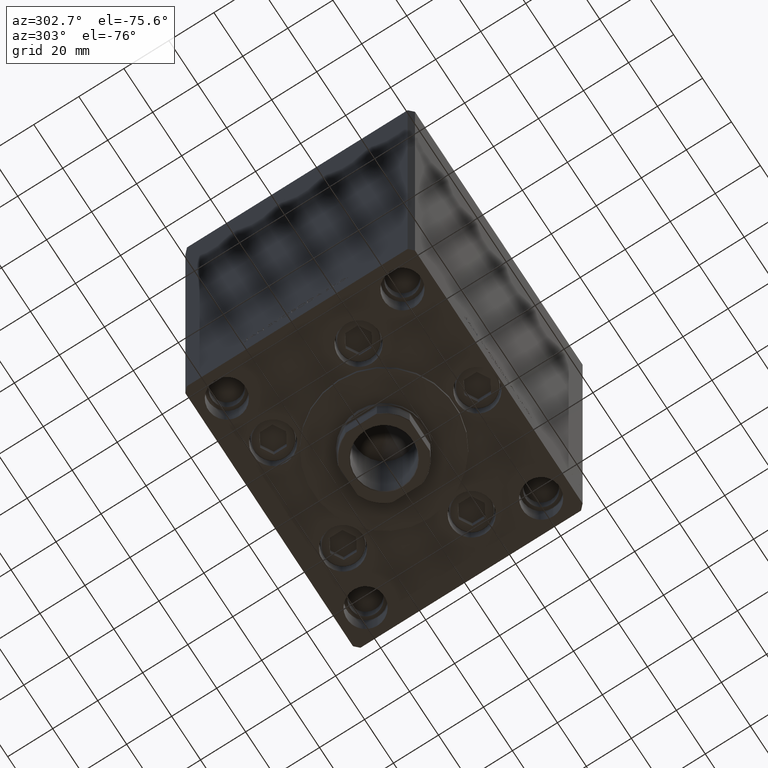
[diagram: clean part render]
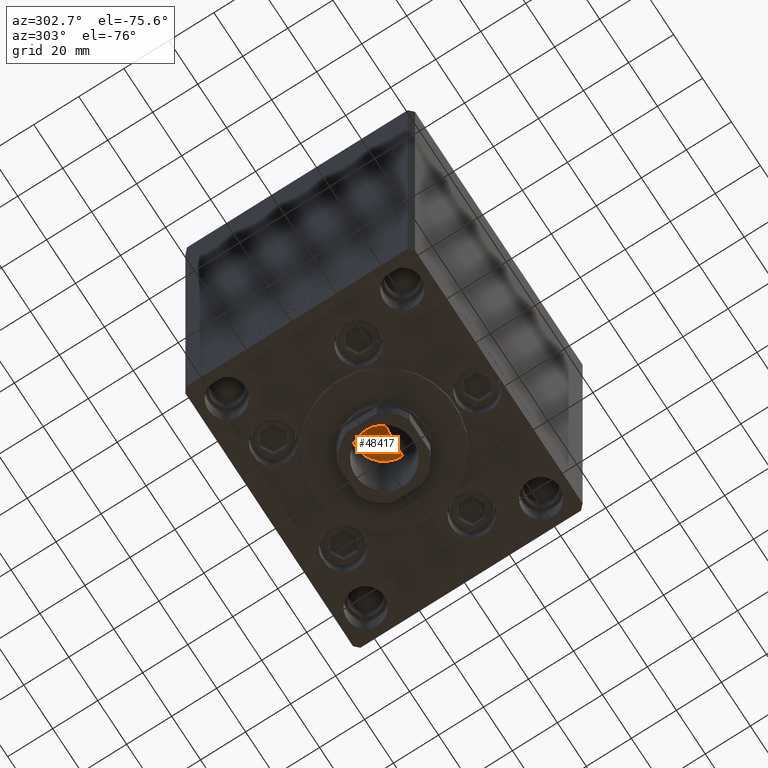
[diagram: same view with one face highlighted and labeled with its STEP entity id]
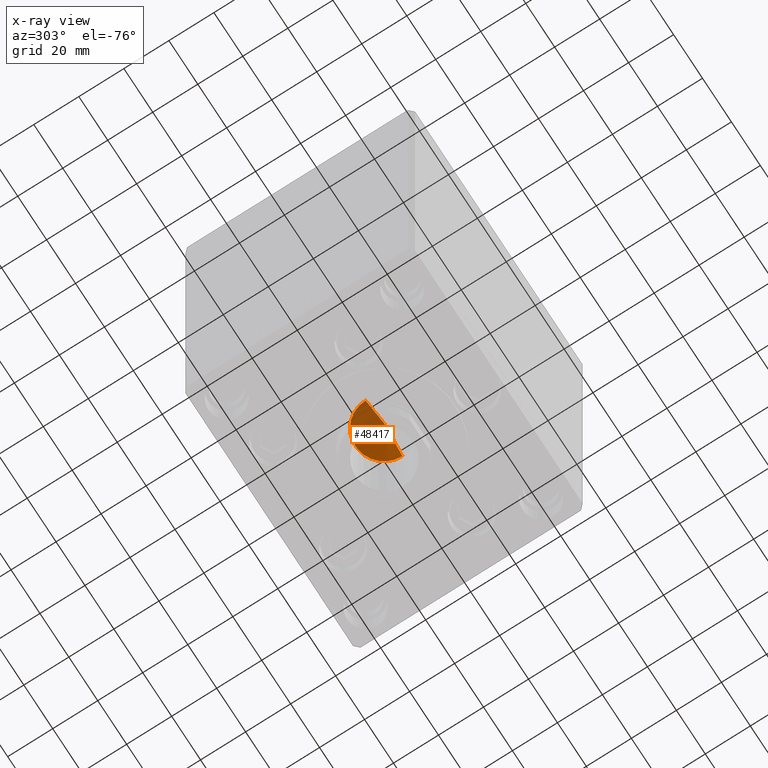
[diagram: x-ray of the same camera — body ghosted, the highlighted face saturated]
A machine part, auxiliary view. The second image highlights one B-rep face of the part: STEP entity #48417.
The next image is the same camera in x-ray: the body ghosted, the highlighted face saturated — about 38% of this face is hidden behind the body in this view.
In plain terms, the highlighted conical surface has half-angle 59 deg.
Its self-contained STEP definition (entity closure, byte-faithful):
#34 = AXIS2_PLACEMENT_3D ( 'NONE', #45581, #26209, #11525 ) ;
#1600 = DIRECTION ( 'NONE',  ( -0.000000000000000000, -0.000000000000000000, 1.000000000000000000 ) ) ;
#3322 = CARTESIAN_POINT ( 'NONE',  ( -12.74999999999999112, 1.561424668912874125E-15, 144.2500000000000000 ) ) ;
#4996 = EDGE_LOOP ( 'NONE', ( #36904, #14921, #48984 ) ) ;
#11267 = LINE ( 'NONE', #3322, #25377 ) ;
#11457 = CARTESIAN_POINT ( 'NONE',  ( -12.74999999999999112, 1.561424668912874125E-15, 144.2500000000000000 ) ) ;
#11525 = DIRECTION ( 'NONE',  ( 1.000000000000000000, 0.000000000000000000, 0.000000000000000000 ) ) ;
#12544 = CARTESIAN_POINT ( 'NONE',  ( 0.000000000000000000, 0.000000000000000000, 144.2500000000000000 ) ) ;
#14921 = ORIENTED_EDGE ( 'NONE', *, *, #17011, .T. ) ;
#15282 = VERTEX_POINT ( 'NONE', #43846 ) ;
#17011 = EDGE_CURVE ( 'NONE', #40598, #15282, #24226, .T. ) ;
#18077 = CARTESIAN_POINT ( 'NONE',  ( -1.307202896762960287E-14, 0.000000000000000000, 136.5890271073986071 ) ) ;
#20028 = CIRCLE ( 'NONE', #33568, 12.74999999999999112 ) ;
#21543 = EDGE_CURVE ( 'NONE', #15282, #26114, #20028, .T. ) ;
#22465 = DIRECTION ( 'NONE',  ( -0.8571673007021125557, 1.049727191138618942E-16, 0.5150380749100536004 ) ) ;
#24226 = LINE ( 'NONE', #42871, #46072 ) ;
#25377 = VECTOR ( 'NONE', #22465, 1000.000000000000114 ) ;
#26114 = VERTEX_POINT ( 'NONE', #11457 ) ;
#26209 = DIRECTION ( 'NONE',  ( -0.000000000000000000, -0.000000000000000000, 1.000000000000000000 ) ) ;
#27469 = DIRECTION ( 'NONE',  ( 0.8571673007021125557, 0.000000000000000000, 0.5150380749100536004 ) ) ;
#33568 = AXIS2_PLACEMENT_3D ( 'NONE', #12544, #1600, #39876 ) ;
#36904 = ORIENTED_EDGE ( 'NONE', *, *, #46094, .F. ) ;
#38374 = FACE_OUTER_BOUND ( 'NONE', #4996, .T. ) ;
#39876 = DIRECTION ( 'NONE',  ( 1.000000000000000000, 0.000000000000000000, 0.000000000000000000 ) ) ;
#40598 = VERTEX_POINT ( 'NONE', #18077 ) ;
#42082 = CONICAL_SURFACE ( 'NONE', #34, 12.74999999999999112, 1.029744258676655200 ) ;
#42871 = CARTESIAN_POINT ( 'NONE',  ( 12.74999999999999112, 0.000000000000000000, 144.2500000000000000 ) ) ;
#43846 = CARTESIAN_POINT ( 'NONE',  ( 12.74999999999999112, 0.000000000000000000, 144.2500000000000000 ) ) ;
#45581 = CARTESIAN_POINT ( 'NONE',  ( 0.000000000000000000, 0.000000000000000000, 144.2500000000000000 ) ) ;
#46072 = VECTOR ( 'NONE', #27469, 1000.000000000000114 ) ;
#46094 = EDGE_CURVE ( 'NONE', #40598, #26114, #11267, .T. ) ;
#48417 = ADVANCED_FACE ( 'NONE', ( #38374 ), #42082, .F. ) ;
#48984 = ORIENTED_EDGE ( 'NONE', *, *, #21543, .T. ) ;